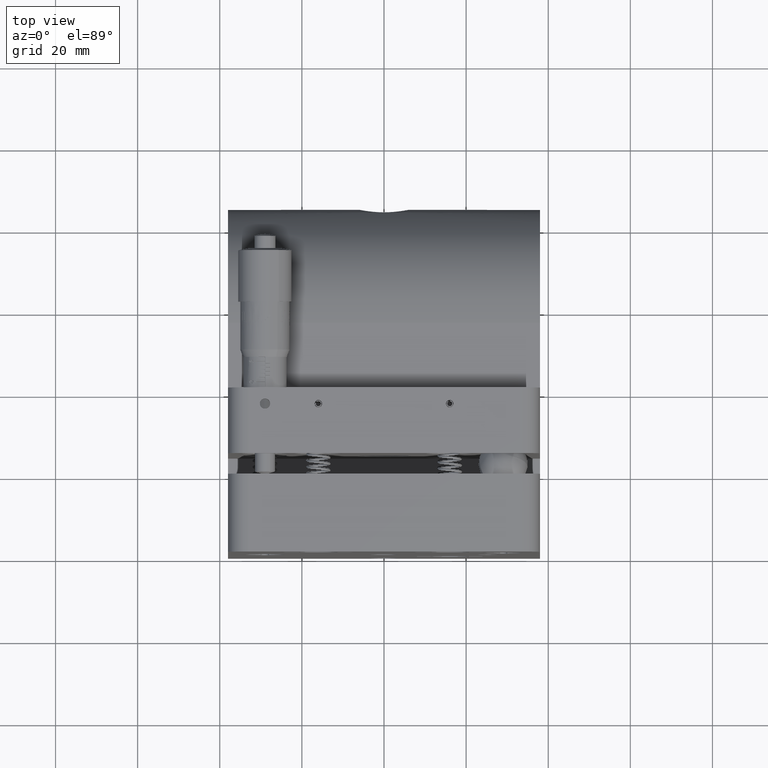
[diagram: clean part render]
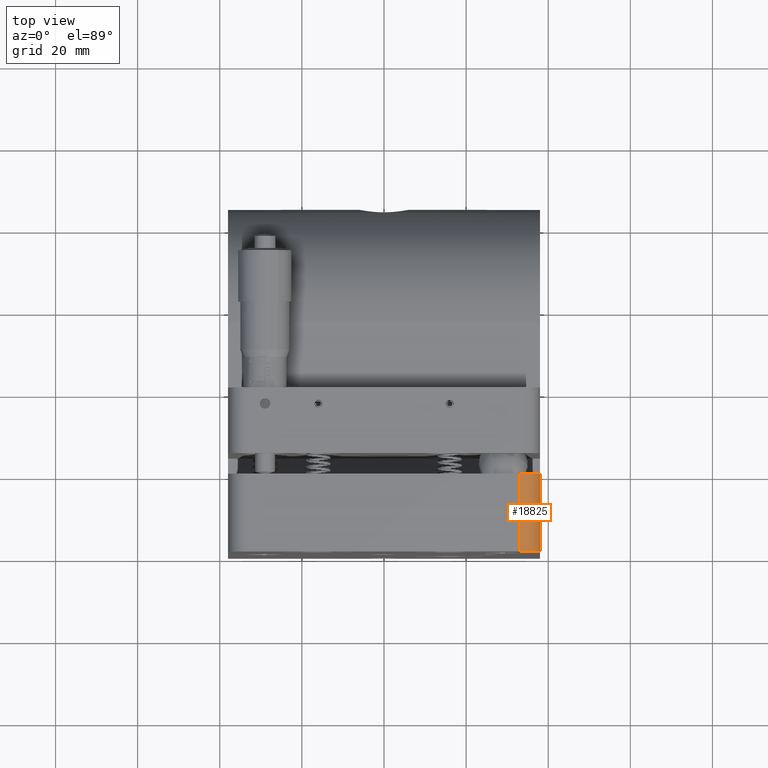
[diagram: same view with one face highlighted and labeled with its STEP entity id]
A machine part, top view. The second image highlights one B-rep face of the part: STEP entity #18825.
In plain terms, the highlighted cylindrical surface (edge-blend (fillet) strip) has radius 5 mm, axis along (0, 1, 0).
Its self-contained STEP definition (entity closure, byte-faithful):
#1239 = CARTESIAN_POINT ( 'NONE',  ( 33.00000000000000000, 40.99999999999999300, 39.00000000000000000 ) ) ;
#2753 = LINE ( 'NONE', #64274, #37682 ) ;
#3388 = DIRECTION ( 'NONE',  ( -0.0000000000000000000, 1.000000000000000000, -1.237614846119006200E-016 ) ) ;
#4247 = EDGE_LOOP ( 'NONE', ( #30974, #43850, #71215, #57168 ) ) ;
#14902 = DIRECTION ( 'NONE',  ( 0.0000000000000000000, -1.000000000000000000, 0.0000000000000000000 ) ) ;
#15056 = VERTEX_POINT ( 'NONE', #61719 ) ;
#17676 = LINE ( 'NONE', #52344, #61332 ) ;
#18825 = ADVANCED_FACE ( 'NONE', ( #78270 ), #33645, .T. ) ;
#22474 = AXIS2_PLACEMENT_3D ( 'NONE', #1239, #50031, #22630 ) ;
#22630 = DIRECTION ( 'NONE',  ( 0.0000000000000000000, 0.0000000000000000000, 1.000000000000000000 ) ) ;
#26572 = AXIS2_PLACEMENT_3D ( 'NONE', #28252, #77236, #70841 ) ;
#28252 = CARTESIAN_POINT ( 'NONE',  ( 33.00000000000000000, 6.938893903907228400E-015, 39.00000000000000000 ) ) ;
#30974 = ORIENTED_EDGE ( 'NONE', *, *, #77485, .F. ) ;
#31786 = VERTEX_POINT ( 'NONE', #64834 ) ;
#33645 = CYLINDRICAL_SURFACE ( 'NONE', #22474, 4.999999999999997300 ) ;
#37091 = EDGE_CURVE ( 'NONE', #58600, #79212, #2753, .T. ) ;
#37682 = VECTOR ( 'NONE', #14902, 1000.000000000000000 ) ;
#38048 = DIRECTION ( 'NONE',  ( -0.0000000000000000000, 1.000000000000000000, -0.0000000000000000000 ) ) ;
#43672 = CIRCLE ( 'NONE', #55677, 4.999999999999997300 ) ;
#43850 = ORIENTED_EDGE ( 'NONE', *, *, #90005, .F. ) ;
#45490 = CARTESIAN_POINT ( 'NONE',  ( 33.00000000000000000, 19.00000000000000700, 39.00000000000000000 ) ) ;
#50031 = DIRECTION ( 'NONE',  ( 0.0000000000000000000, 1.000000000000000000, 0.0000000000000000000 ) ) ;
#52344 = CARTESIAN_POINT ( 'NONE',  ( 33.00000000000000000, 19.00000000000000700, 44.00000000000000000 ) ) ;
#55677 = AXIS2_PLACEMENT_3D ( 'NONE', #45490, #3388, #87198 ) ;
#57168 = ORIENTED_EDGE ( 'NONE', *, *, #37091, .F. ) ;
#58600 = VERTEX_POINT ( 'NONE', #65756 ) ;
#61332 = VECTOR ( 'NONE', #38048, 1000.000000000000000 ) ;
#61719 = CARTESIAN_POINT ( 'NONE',  ( 33.00000000000000000, 8.082401935227689900E-015, 44.00000000000000000 ) ) ;
#64274 = CARTESIAN_POINT ( 'NONE',  ( 38.00000000000000000, 6.938893903907228400E-015, 39.00000000000000000 ) ) ;
#64834 = CARTESIAN_POINT ( 'NONE',  ( 33.00000000000000000, 19.00000000000000700, 44.00000000000000000 ) ) ;
#65756 = CARTESIAN_POINT ( 'NONE',  ( 38.00000000000000000, 19.00000000000000700, 38.99999999999997200 ) ) ;
#70841 = DIRECTION ( 'NONE',  ( 0.0000000000000000000, 1.836909530733566400E-016, 1.000000000000000000 ) ) ;
#71215 = ORIENTED_EDGE ( 'NONE', *, *, #79756, .F. ) ;
#74008 = CIRCLE ( 'NONE', #26572, 4.999999999999997300 ) ;
#77236 = DIRECTION ( 'NONE',  ( -0.0000000000000000000, -1.000000000000000000, 1.836909530733565600E-016 ) ) ;
#77485 = EDGE_CURVE ( 'NONE', #31786, #58600, #43672, .T. ) ;
#78270 = FACE_OUTER_BOUND ( 'NONE', #4247, .T. ) ;
#79212 = VERTEX_POINT ( 'NONE', #84852 ) ;
#79756 = EDGE_CURVE ( 'NONE', #79212, #15056, #74008, .T. ) ;
#84852 = CARTESIAN_POINT ( 'NONE',  ( 38.00000000000000000, 7.163947169860903800E-015, 39.00000000000000000 ) ) ;
#87198 = DIRECTION ( 'NONE',  ( 0.0000000000000000000, 0.0000000000000000000, -1.000000000000000000 ) ) ;
#90005 = EDGE_CURVE ( 'NONE', #15056, #31786, #17676, .T. ) ;